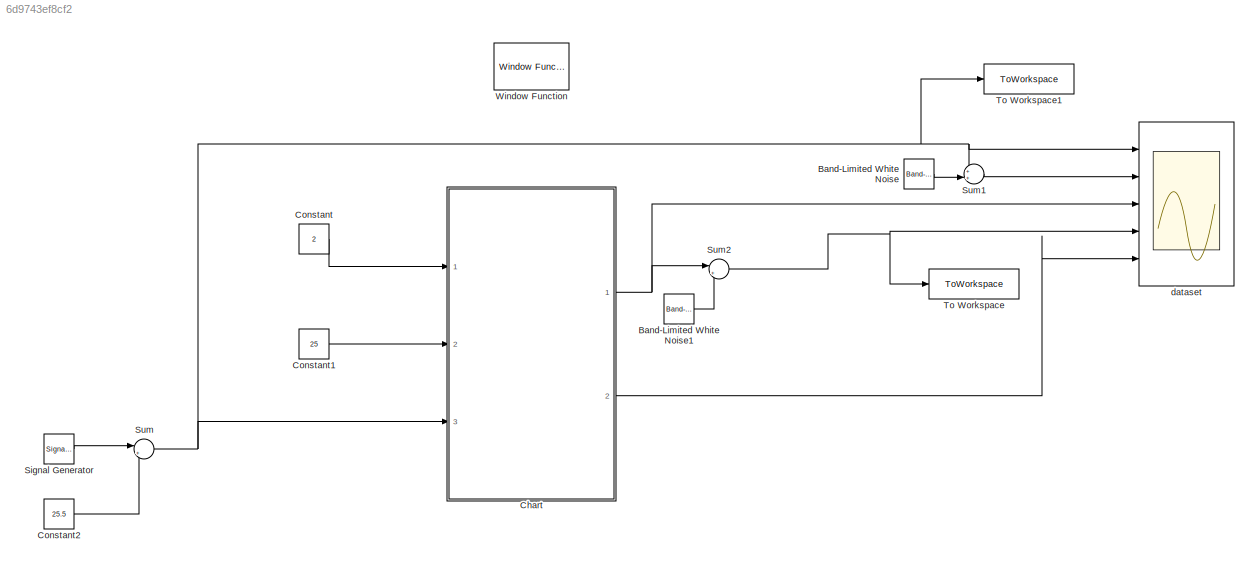
MODEL slx_6d9743ef8cf2
KIND model
CONFIG AbsTol = auto
CONFIG EnableMultiTasking = off
CONFIG FixedStep = auto
CONFIG MaxStep = auto
CONFIG MinStep = auto
CONFIG RelTol = 1e-3
CONFIG SampleTimeConstraint = Unconstrained
CONFIG Solver = VariableStepAuto
CONFIG SolverName = VariableStepAuto
CONFIG StartTime = 0.0
CONFIG StopTime = 30
BLOCK [Reference] Band-Limited White Noise  REF=simulink/Sources/Band-Limited
White Noise
  Ports = [0, 1]
  SourceBlock = simulink/Sources/Band-Limited\nWhite Noise
  SourceProductBaseCode = SL
  SourceProductName = Simulink
  SourceType = Band-Limited White Noise.
BLOCK [Reference] Band-Limited White Noise1  REF=simulink/Sources/Band-Limited
White Noise
  Ports = [0, 1]
  SourceBlock = simulink/Sources/Band-Limited\nWhite Noise
  SourceProductBaseCode = SL
  SourceProductName = Simulink
  SourceType = Band-Limited White Noise.
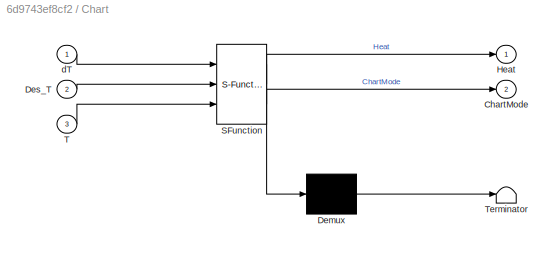
BLOCK [SubSystem] Chart
  BlockKeywords = __PRM__SERIALIZED__DATA__:Stateflow Chart,Stateflow Diagram
  ErrorFcn = Stateflow.Translate.translate
  PermitHierarchicalResolution = ExplicitOnly
  Ports = [3, 2]
  RequestExecContextInheritance = off
  SFBlockType = Chart
  TreatAsAtomicUnit = on
BLOCK [Demux] Chart/ Demux 
  Outputs = 1
  Ports = [1, 1]
BLOCK [S-Function] Chart/ SFunction 
  EnableBusSupport = on
  FunctionName = sf_sfun
  PortCounts = [3 3]
  Ports = [3, 3]
  SFcnIsStateOwnerBlock = off
  SFunctionDeploymentMode = off
  Tag = Stateflow S-Function 3
BLOCK [Terminator] Chart/ Terminator 
BLOCK [Outport] Chart/ChartMode
  IconDisplay = Port number
  Port = 2
  VectorParamsAs1DForOutWhenUnconnected = off
BLOCK [Inport] Chart/Des_T
  IconDisplay = Port number
  Port = 2
BLOCK [Outport] Chart/Heat
  IconDisplay = Port number
  VectorParamsAs1DForOutWhenUnconnected = off
BLOCK [Inport] Chart/T
  IconDisplay = Port number
  Port = 3
BLOCK [Inport] Chart/dT
  IconDisplay = Port number
BLOCK [Constant] Constant
  Value = 2
BLOCK [Constant] Constant1
  Value = 25
BLOCK [Constant] Constant2
  Value = 25.5
BLOCK [SignalGenerator] Signal Generator
  Amplitude = 4.5
  Frequency = 0.5
  Ports = [0, 1]
  Units = rad/sec
BLOCK [Sum] Sum
  IconShape = round
  InputSameDT = off
  Inputs = |++
  OutDataTypeStr = Inherit: Inherit via internal rule
  Ports = [2, 1]
  SaturateOnIntegerOverflow = off
BLOCK [Sum] Sum1
  IconShape = round
  InputSameDT = off
  Inputs = ++|
  OutDataTypeStr = Inherit: Inherit via internal rule
  Ports = [2, 1]
  SaturateOnIntegerOverflow = off
BLOCK [Sum] Sum2
  IconShape = round
  InputSameDT = off
  Inputs = |++
  OutDataTypeStr = Inherit: Inherit via internal rule
  Ports = [2, 1]
  SaturateOnIntegerOverflow = off
BLOCK [ToWorkspace] To Workspace
  FixptAsFi = on
  MaxDataPoints = inf
  Ports = [1]
  SampleTime = -1
  SaveFormat = Timeseries
  VariableName = WithWhiteNoise
BLOCK [ToWorkspace] To Workspace1
  FixptAsFi = on
  MaxDataPoints = inf
  Ports = [1]
  SampleTime = -1
  SaveFormat = Timeseries
  VariableName = Original
BLOCK [Reference] Window Function  REF=dspsigops/Window
Function
  Commented = on
  Ports = [1, 2]
  SourceBlock = dspsigops/Window\nFunction
  SourceProductBaseCode = DS
  SourceProductName = DSP System Toolbox
  SourceType = Window Function
BLOCK [Scope] dataset
  Floating = off
  NumInputPorts = 5
  Ports = [5]
  ScopeSpecificationString = Simulink.scopes.TimeScopeBlockCfg('CurrentConfiguration', extmgr.ConfigurationSet(extmgr.Configuration('Core','General UI',true),extmgr.Configuration('Core','Source UI',true),extmgr.Configuration('Sources','WiredSimulink',true,'DataLogging',true),extmgr.Configuration('Visuals','Time Domain',true,'SerializedDisplays',{struct('MinYLimReal','19.87505','MaxYLimReal','31.12495','YLabelReal','','MinYLim...<+4040ch>
LINE Band-Limited White Noise1:1 -> Sum2:2
LINE Band-Limited White Noise:1 -> Sum1:2
NET Chart:1 -> Sum2:1, dataset:3
LINE Chart:2 -> dataset:5
LINE Constant1:1 -> Chart:2
LINE Constant2:1 -> Sum:2
LINE Constant:1 -> Chart:1
LINE Signal Generator:1 -> Sum:1
LINE Sum1:1 -> dataset:2
NET Sum2:1 -> To Workspace:1, dataset:4
NET Sum:1 -> Chart:3, Sum1:1, To Workspace1:1, dataset:1
note: NET lines group one-source signal fan-out (src -> all destinations, sorted); 1:1 wires keep LINE
CHART Chart states=3 transitions=8
  STATE_LABEL 'Off\nentry:\nHeat = 0;'
  STATE_LABEL 'CoolerOn\nentry:\nHeat = -1;'
  STATE_LABEL 'HeaterOn\nentry:\nHeat = 1;'
